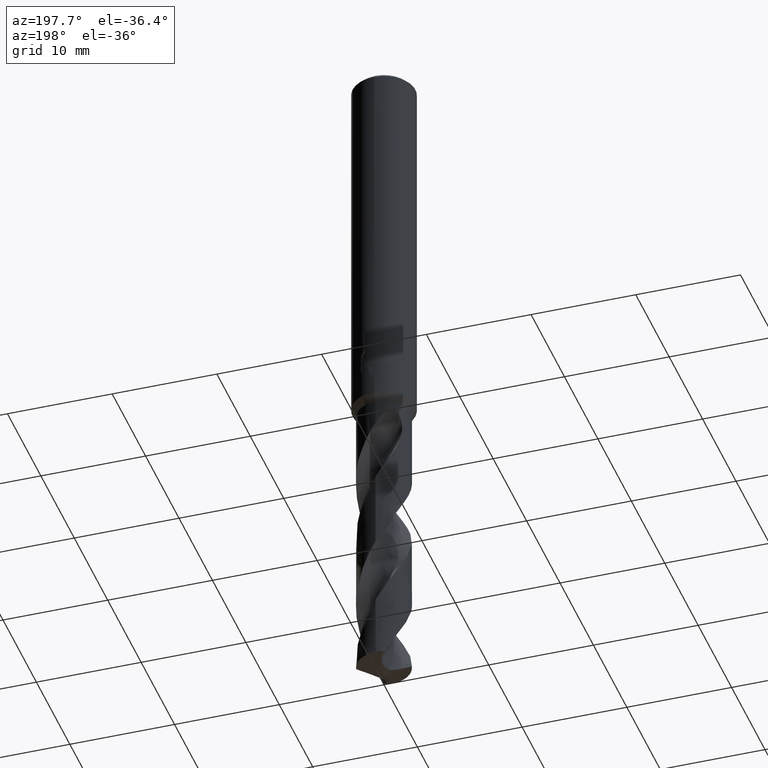
[diagram: clean part render]
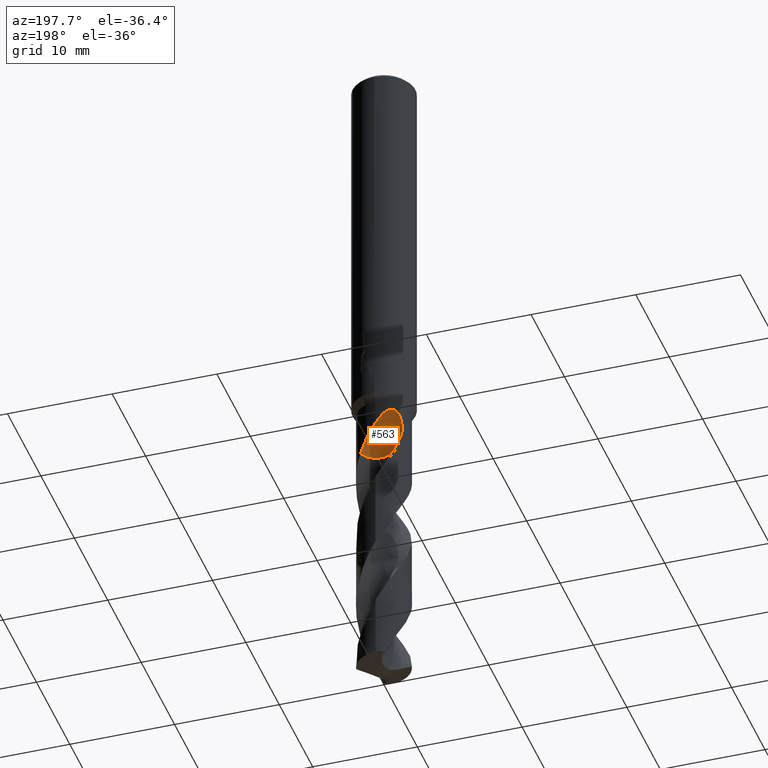
[diagram: same view with one face highlighted and labeled with its STEP entity id]
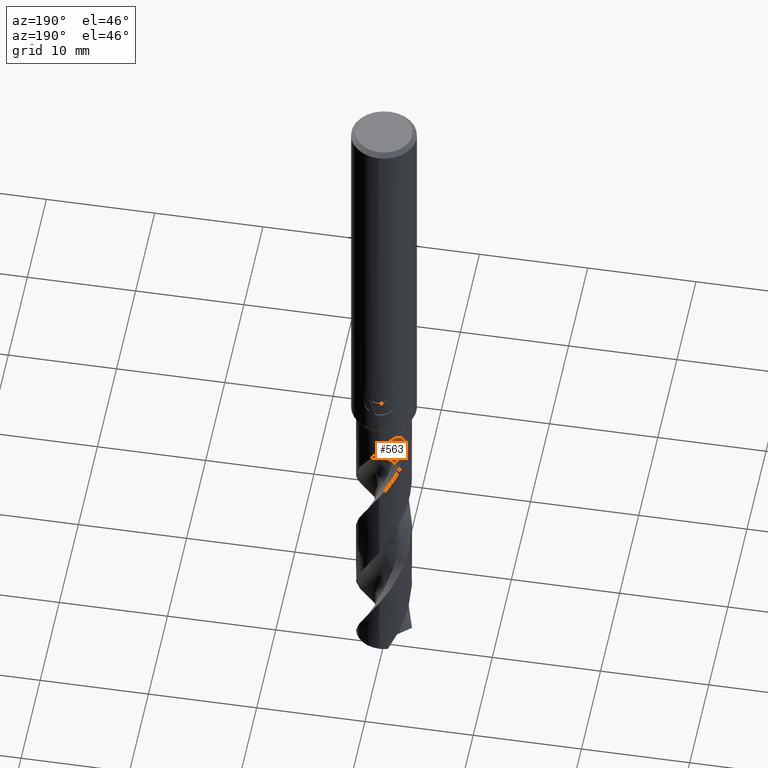
[diagram: same view with one face highlighted and labeled with its STEP entity id]
A machine part, auxiliary view. The second image highlights one B-rep face of the part: STEP entity #563.
A second angle (auxiliary view) of the same face is appended — the face is thin or edge-on in the first view.
In plain terms, the highlighted face is a SurfaceOfRevolution surface.
Its self-contained STEP definition (entity closure, byte-faithful):
#307=VERTEX_POINT('',#831);
#341=VERTEX_POINT('',#868);
#353=VERTEX_POINT('',#880);
#357=EDGE_CURVE('',#711,#307,#884,.T.);
#481=EDGE_CURVE('',#353,#711,#1020,.T.);
#487=EDGE_CURVE('',#703,#341,#1027,.T.);
#563=ADVANCED_FACE('',(#1110),#1111,.F.);
#675=EDGE_CURVE('',#307,#341,#1238,.T.);
#693=EDGE_CURVE('',#353,#703,#1258,.T.);
#703=VERTEX_POINT('',#1269);
#711=VERTEX_POINT('',#1278);
#831=CARTESIAN_POINT('',(-1.20208152794642,1.26291847205358,-41.8606));
#868=CARTESIAN_POINT('',(-2.07478751640229,1.48248330910713,-40.4642704184706));
#880=CARTESIAN_POINT('',(1.62490083550806,1.96524738258704,-41.8606));
#884=CIRCLE('',#2043,1.7);
#1020=CIRCLE('',#4018,1.7);
#1027=B_SPLINE_CURVE_WITH_KNOTS('',3,(#4028,#4029,#4030,#4031,#4032,#4033,#4034,#4035,#4036,#4037,#4038,#4039,#4040,#4041,#4042,#4043,#4044,#4045,#4046,#4047,#4048,#4049,#4050,#4051,#4052,#4053,#4054,#4055),.UNSPECIFIED.,.F.,.F.,(4,2,2,2,2,2,2,2,2,2,2,2,2,4),(0.0,1.24935961285044,1.93153835635051,2.54942075450001,3.26725165442517,4.12953051732241,4.87688242765116,5.21555645378095,5.46308588244345,5.69732111728379,5.9944624779082,6.42919234259553,7.0472119583773,7.749992400247),.UNSPECIFIED.);
#1110=FACE_OUTER_BOUND('',#4278,.T.);
#1111=SURFACE_OF_REVOLUTION('',#4279,#4280);
#1238=CIRCLE('',#5772,11.0804127453489);
#1258=B_SPLINE_CURVE_WITH_KNOTS('',3,(#6282,#6283,#6284,#6285,#6286,#6287,#6288,#6289,#6290,#6291,#6292,#6293,#6294,#6295,#6296,#6297,#6298,#6299,#6300,#6301,#6302,#6303,#6304,#6305,#6306,#6307,#6308,#6309),.UNSPECIFIED.,.F.,.F.,(4,2,2,2,2,2,2,2,2,2,2,2,2,4),(0.0,1.24935961285044,1.93153835635051,2.54942075450001,3.26725165442517,4.12953051732241,4.87688242765116,5.21555645378095,5.46308588244345,5.69732111728379,5.9944624779082,6.42919234259553,7.0472119583773,7.749992400247),.UNSPECIFIED.);
#1269=CARTESIAN_POINT('',(-7.59881753061107E-013,2.55,-39.15000204322));
#1278=CARTESIAN_POINT('',(-0.269409738912672,0.786472330421527,-41.8606));
#2043=AXIS2_PLACEMENT_3D('',#7342,#7343,#7344);
#4018=AXIS2_PLACEMENT_3D('',#7475,#7476,#7477);
#4028=CARTESIAN_POINT('',(1.62490083550806,1.96524738258704,-41.8606));
#4029=CARTESIAN_POINT('',(1.45669338031003,2.10432424227997,-41.505921060011));
#4030=CARTESIAN_POINT('',(1.26329282268802,2.22795392363682,-41.1752460080512));
#4031=CARTESIAN_POINT('',(0.926059863963475,2.37948797834109,-40.6228305933093));
#4032=CARTESIAN_POINT('',(0.80470770883871,2.42307855916639,-40.4284724289746));
#4033=CARTESIAN_POINT('',(0.569785261369409,2.4882262006282,-40.0522453289005));
#4034=CARTESIAN_POINT('',(0.457263904156223,2.5112427100234,-39.8721300689186));
#4035=CARTESIAN_POINT('',(0.213702551379174,2.54446123212519,-39.4839337875907));
#4036=CARTESIAN_POINT('',(0.0806280975477889,2.55226003480915,-39.2728141637524));
#4037=CARTESIAN_POINT('',(-0.214896144172126,2.54604382693197,-38.8211596554812));
#4038=CARTESIAN_POINT('',(-0.390112134702439,2.52681712314374,-38.5641633105317));
#4039=CARTESIAN_POINT('',(-0.727993527751655,2.44917046311251,-38.1403940501317));
#4040=CARTESIAN_POINT('',(-0.914929811528085,2.39001349986102,-37.9336112017254));
#4041=CARTESIAN_POINT('',(-1.19785599497995,2.25327402243574,-37.739979955409));
#4042=CARTESIAN_POINT('',(-1.29150639456486,2.20165174678138,-37.6921259434389));
#4043=CARTESIAN_POINT('',(-1.45560342999806,2.09536020524701,-37.6553654798896));
#4044=CARTESIAN_POINT('',(-1.52290884093068,2.04695423733336,-37.6546790722435));
#4045=CARTESIAN_POINT('',(-1.64826880519653,1.94724804510426,-37.6868521317766));
#4046=CARTESIAN_POINT('',(-1.7030949990296,1.89909194326957,-37.7170172338095));
#4047=CARTESIAN_POINT('',(-1.81466569523409,1.7935616050469,-37.8114003700712));
#4048=CARTESIAN_POINT('',(-1.86628334890514,1.73887313285198,-37.8810853385635));
#4049=CARTESIAN_POINT('',(-1.97201299416667,1.61945684737334,-38.0719044253322));
#4050=CARTESIAN_POINT('',(-2.02254965717073,1.55442613573125,-38.2134357996927));
#4051=CARTESIAN_POINT('',(-2.11758198328295,1.42384528135437,-38.6094248392794));
#4052=CARTESIAN_POINT('',(-2.15193836814656,1.3682241127332,-38.8914429216081));
#4053=CARTESIAN_POINT('',(-2.17390554000001,1.33308696786573,-39.5656944377644));
#4054=CARTESIAN_POINT('',(-2.1583403623475,1.36554816342146,-39.9890449633594));
#4055=CARTESIAN_POINT('',(-2.07478751640229,1.48248330910713,-40.4642704184706));
#4278=EDGE_LOOP('',(#7587,#7588,#7589,#7590,#7591));
#4279=(B_SPLINE_CURVE(3,(#7593,#7594,#7595,#7596,#7597,#7598,#7599,#7600,#7601),.UNSPECIFIED.,.F.,.F.)B_SPLINE_CURVE_WITH_KNOTS((4,1,3,1,4),(-2.85587209839975,-2.55247693377613,-2.24908176915251,-1.94568660452889,-1.64229143990528),.UNSPECIFIED.)RATIONAL_B_SPLINE_CURVE((1.09204862591699,1.03068287530566,0.969317124694336,1.03068287530566,1.09204862591699,1.03068287530566,0.969317124694336,1.03068287530566,1.09204862591699))BOUNDED_CURVE()REPRESENTATION_ITEM('')GEOMETRIC_REPRESENTATION_ITEM()CURVE());
#4280=AXIS1_PLACEMENT('',#7608,#7609);
#5772=AXIS2_PLACEMENT_3D('',#7765,#7766,#7767);
#6282=CARTESIAN_POINT('',(1.62490083550806,1.96524738258704,-41.8606));
#6283=CARTESIAN_POINT('',(1.45669338031003,2.10432424227997,-41.505921060011));
#6284=CARTESIAN_POINT('',(1.26329282268802,2.22795392363682,-41.1752460080512));
#6285=CARTESIAN_POINT('',(0.926059863963475,2.37948797834109,-40.6228305933093));
#6286=CARTESIAN_POINT('',(0.80470770883871,2.42307855916639,-40.4284724289746));
#6287=CARTESIAN_POINT('',(0.569785261369409,2.4882262006282,-40.0522453289005));
#6288=CARTESIAN_POINT('',(0.457263904156223,2.5112427100234,-39.8721300689186));
#6289=CARTESIAN_POINT('',(0.213702551379174,2.54446123212519,-39.4839337875907));
#6290=CARTESIAN_POINT('',(0.0806280975477889,2.55226003480915,-39.2728141637524));
#6291=CARTESIAN_POINT('',(-0.214896144172126,2.54604382693197,-38.8211596554812));
#6292=CARTESIAN_POINT('',(-0.390112134702439,2.52681712314374,-38.5641633105317));
#6293=CARTESIAN_POINT('',(-0.727993527751655,2.44917046311251,-38.1403940501317));
#6294=CARTESIAN_POINT('',(-0.914929811528085,2.39001349986102,-37.9336112017254));
#6295=CARTESIAN_POINT('',(-1.19785599497995,2.25327402243574,-37.739979955409));
#6296=CARTESIAN_POINT('',(-1.29150639456486,2.20165174678138,-37.6921259434389));
#6297=CARTESIAN_POINT('',(-1.45560342999806,2.09536020524701,-37.6553654798896));
#6298=CARTESIAN_POINT('',(-1.52290884093068,2.04695423733336,-37.6546790722435));
#6299=CARTESIAN_POINT('',(-1.64826880519653,1.94724804510426,-37.6868521317766));
#6300=CARTESIAN_POINT('',(-1.7030949990296,1.89909194326957,-37.7170172338095));
#6301=CARTESIAN_POINT('',(-1.81466569523409,1.7935616050469,-37.8114003700712));
#6302=CARTESIAN_POINT('',(-1.86628334890514,1.73887313285198,-37.8810853385635));
#6303=CARTESIAN_POINT('',(-1.97201299416667,1.61945684737334,-38.0719044253322));
#6304=CARTESIAN_POINT('',(-2.02254965717073,1.55442613573125,-38.2134357996927));
#6305=CARTESIAN_POINT('',(-2.11758198328295,1.42384528135437,-38.6094248392794));
#6306=CARTESIAN_POINT('',(-2.15193836814656,1.3682241127332,-38.8914429216081));
#6307=CARTESIAN_POINT('',(-2.17390554000001,1.33308696786573,-39.5656944377644));
#6308=CARTESIAN_POINT('',(-2.1583403623475,1.36554816342146,-39.9890449633594));
#6309=CARTESIAN_POINT('',(-2.07478751640229,1.48248330910713,-40.4642704184706));
#7342=CARTESIAN_POINT('',(1.30384053492459E-005,2.46498696159465,-41.8606));
#7343=DIRECTION('',(0.0,0.0,-1.0));
#7344=DIRECTION('',(0.707099111494748,0.707114450795158,0.0));
#7475=CARTESIAN_POINT('',(1.30384053492459E-005,2.46498696159465,-41.8606));
#7476=DIRECTION('',(0.0,0.0,-1.0));
#7477=DIRECTION('',(0.707099111494748,0.707114450795158,0.0));
#7587=ORIENTED_EDGE('',*,*,#693,.F.);
#7588=ORIENTED_EDGE('',*,*,#481,.T.);
#7589=ORIENTED_EDGE('',*,*,#357,.T.);
#7590=ORIENTED_EDGE('',*,*,#675,.T.);
#7591=ORIENTED_EDGE('',*,*,#487,.F.);
#7593=CARTESIAN_POINT('',(-1.20208152794642,1.26291847205358,-41.8606));
#7594=CARTESIAN_POINT('',(-0.966185000177541,1.02701682691481,-41.8606));
#7595=CARTESIAN_POINT('',(-0.352498720875005,0.692068478712857,-41.8606));
#7596=CARTESIAN_POINT('',(0.342641017172518,0.766781194863623,-41.8606));
#7597=CARTESIAN_POINT('',(0.650836736161754,0.894500248999259,-41.8606));
#7598=CARTESIAN_POINT('',(0.95903245515099,1.0222193031349,-41.8606));
#7599=CARTESIAN_POINT('',(1.50325402054367,1.46110896253569,-41.8606));
#7600=CARTESIAN_POINT('',(1.70012780504999,2.13196062895798,-41.8606));
#7601=CARTESIAN_POINT('',(1.70001293763561,2.46557229661676,-41.8606));
#7608=CARTESIAN_POINT('',(-0.864418177399672,12.325,-42.4008613608748));
#7609=DIRECTION('',(0.847998304005088,-0.0,0.52999894000318));
#7765=CARTESIAN_POINT('',(-0.864418177399673,12.325,-42.4008613608748));
#7766=DIRECTION('',(-0.847998304005088,0.0,-0.52999894000318));
#7767=DIRECTION('',(-0.0535598122533608,-0.994880693138896,0.0856956996053773));